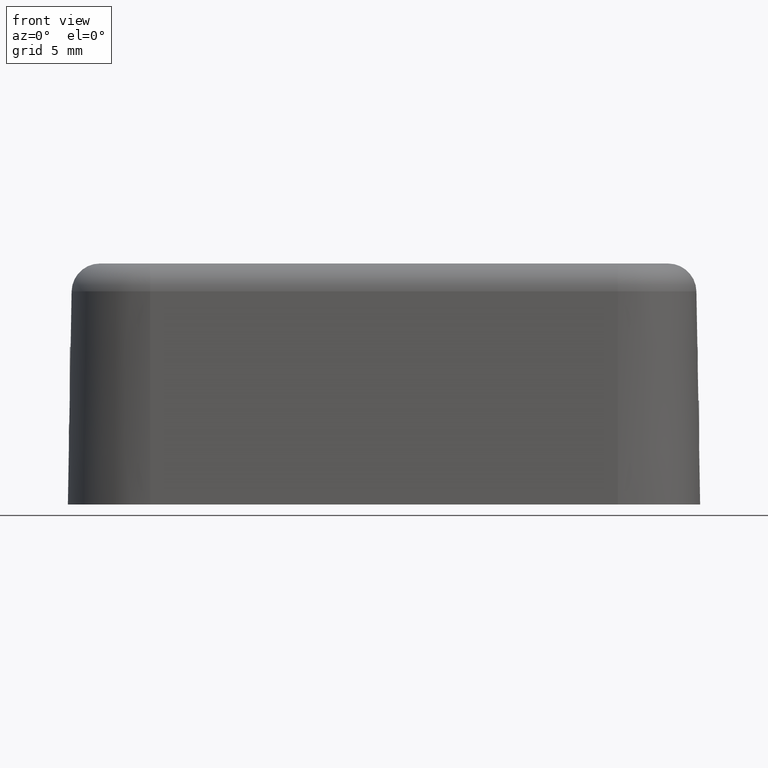
[diagram: clean part render]
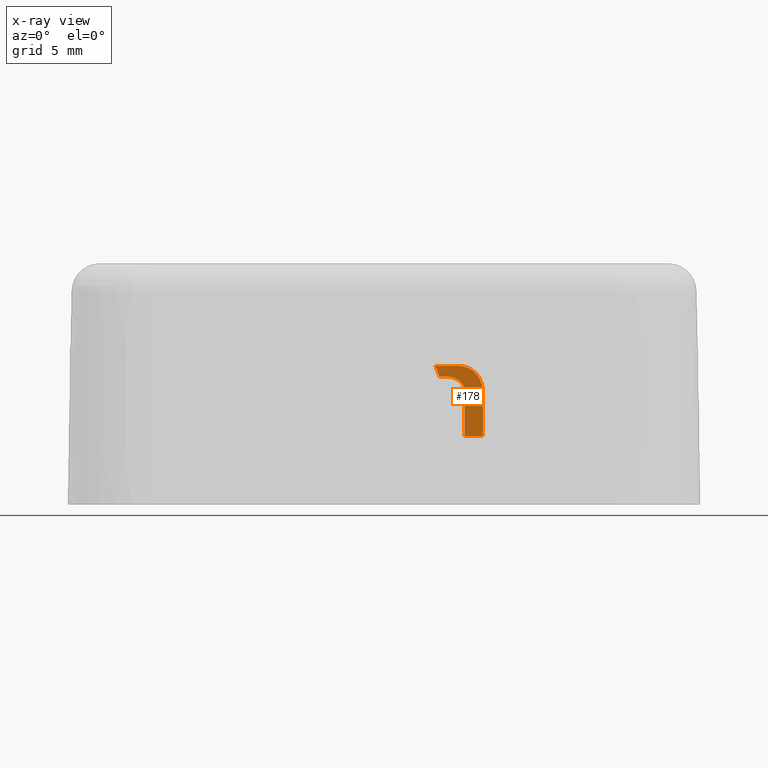
[diagram: x-ray — body ghosted, one internal face saturated and labeled with its STEP entity id]
A machine part, front view, then the same camera in x-ray: the body is ghosted and one INTERNAL B-rep face — a face not visible from any outside direction — is saturated and labeled: STEP entity #178.
In plain terms, the highlighted planar face has unit normal (-0, -0.9998, -0.0175).
Its self-contained STEP definition (entity closure, byte-faithful):
#178=ADVANCED_FACE('',(#403),#404,.T.);
#403=FACE_OUTER_BOUND('',#791,.T.);
#404=PLANE('',#792);
#791=EDGE_LOOP('',(#1386,#1387,#1388,#1389,#1390,#1391,#1392,#1393,#1394,#1395));
#792=AXIS2_PLACEMENT_3D('',#1396,#1397,#1398);
#1386=ORIENTED_EDGE('',*,*,#2932,.T.);
#1387=ORIENTED_EDGE('',*,*,#2930,.T.);
#1388=ORIENTED_EDGE('',*,*,#2938,.T.);
#1389=ORIENTED_EDGE('',*,*,#2939,.T.);
#1390=ORIENTED_EDGE('',*,*,#2940,.T.);
#1391=ORIENTED_EDGE('',*,*,#2941,.T.);
#1392=ORIENTED_EDGE('',*,*,#2942,.T.);
#1393=ORIENTED_EDGE('',*,*,#2943,.T.);
#1394=ORIENTED_EDGE('',*,*,#2924,.T.);
#1395=ORIENTED_EDGE('',*,*,#2927,.T.);
#1396=CARTESIAN_POINT('',(-109.004804760429,-1.86394135748359,330.027120838066));
#1397=DIRECTION('',(-6.12230139754067E-17,-0.999847695156391,-0.0174524064372835));
#1398=DIRECTION('',(1.06865168404189E-18,0.0174524064372835,-0.999847695156391));
#2924=EDGE_CURVE('',#3430,#3428,#3431,.T.);
#2927=EDGE_CURVE('',#3428,#3433,#3435,.T.);
#2930=EDGE_CURVE('',#3437,#3439,#3441,.T.);
#2932=EDGE_CURVE('',#3433,#3437,#3444,.T.);
#2938=EDGE_CURVE('',#3439,#3454,#3455,.T.);
#2939=EDGE_CURVE('',#3454,#3456,#3457,.T.);
#2940=EDGE_CURVE('',#3456,#3458,#3459,.T.);
#2941=EDGE_CURVE('',#3458,#3460,#3461,.T.);
#2942=EDGE_CURVE('',#3460,#3462,#3463,.T.);
#2943=EDGE_CURVE('',#3462,#3430,#3464,.T.);
#3428=VERTEX_POINT('',#4253);
#3430=VERTEX_POINT('',#4256);
#3431=B_SPLINE_CURVE_WITH_KNOTS('',3,(#4257,#4258,#4259,#4260,#4261,#4262),.UNSPECIFIED.,.F.,.F.,(4,2,4),(0.0,0.000489477906700633,0.000978955813401265),.UNSPECIFIED.);
#3433=VERTEX_POINT('',#4265);
#3435=LINE('',#4268,#4269);
#3437=VERTEX_POINT('',#4271);
#3439=VERTEX_POINT('',#4274);
#3441=LINE('',#4277,#4278);
#3444=LINE('',#4291,#4292);
#3454=VERTEX_POINT('',#4325);
#3455=B_SPLINE_CURVE_WITH_KNOTS('',3,(#4326,#4327,#4328,#4329),.UNSPECIFIED.,.F.,.F.,(4,4),(0.0,0.000809639248168947),.UNSPECIFIED.);
#3456=VERTEX_POINT('',#4330);
#3457=B_SPLINE_CURVE_WITH_KNOTS('',3,(#4331,#4332,#4333,#4334,#4335,#4336,#4337,#4338),.UNSPECIFIED.,.F.,.F.,(4,2,2,4),(0.0,0.000519295449088379,0.00103859089817676,0.00207718179635351),.UNSPECIFIED.);
#3458=VERTEX_POINT('',#4339);
#3459=LINE('',#4340,#4341);
#3460=VERTEX_POINT('',#4342);
#3461=LINE('',#4343,#4344);
#3462=VERTEX_POINT('',#4345);
#3463=LINE('',#4346,#4347);
#3464=B_SPLINE_CURVE_WITH_KNOTS('',3,(#4348,#4349,#4350,#4351),.UNSPECIFIED.,.F.,.F.,(4,4),(0.0,0.000984634557303592),.UNSPECIFIED.);
#4253=CARTESIAN_POINT('',(5.68921495000001,3.76022886137258,7.81862479493384));
#4256=CARTESIAN_POINT('',(5.35058849100002,3.74497258939879,8.69265603094093));
#4257=CARTESIAN_POINT('',(5.35058849100002,3.74497258939879,8.69265603094093));
#4258=CARTESIAN_POINT('',(5.47721859227302,3.74680425140634,8.58772018480744));
#4259=CARTESIAN_POINT('',(5.57476928832032,3.74918041793266,8.45158969568717));
#4260=CARTESIAN_POINT('',(5.69240979200355,3.75447757987882,8.14811549103976));
#4261=CARTESIAN_POINT('',(5.71210674899845,3.75738641406496,7.9814684921246));
#4262=CARTESIAN_POINT('',(5.68921495000001,3.76022886137257,7.81862479493384));
#4265=CARTESIAN_POINT('',(5.68921495000001,3.81239226750786,4.83018525891382));
#4268=CARTESIAN_POINT('',(5.68921495000001,3.8129882237903,4.79604294635943));
#4269=VECTOR('',#5772,1000.0);
#4271=CARTESIAN_POINT('',(6.97535969800002,3.81239226750787,4.83018525891353));
#4274=CARTESIAN_POINT('',(6.97535969800002,3.76022886137258,7.81862479493384));
#4277=CARTESIAN_POINT('',(6.97535969800002,3.76084070592381,7.78357224406953));
#4278=VECTOR('',#5775,1000.0);
#4291=CARTESIAN_POINT('',(6.97535969800002,3.81239226750787,4.83018525891353));
#4292=VECTOR('',#5776,1000.0);
#4325=CARTESIAN_POINT('',(6.85251916500003,3.74632834419061,8.61498489093671));
#4326=CARTESIAN_POINT('',(6.97535969800002,3.76022886137258,7.81862479493384));
#4327=CARTESIAN_POINT('',(6.97654290833977,3.75551516924742,8.08867203592358));
#4328=CARTESIAN_POINT('',(6.93502208993655,3.75081678243867,8.35784243592332));
#4329=CARTESIAN_POINT('',(6.85251916500003,3.74632834419061,8.61498489093671));
#4330=CARTESIAN_POINT('',(5.27432954700003,3.72624048161821,9.7658177669529));
#4331=CARTESIAN_POINT('',(6.85251916500003,3.74632834419061,8.61498489093671));
#4332=CARTESIAN_POINT('',(6.79888251443819,3.7434103289387,8.7821578727565));
#4333=CARTESIAN_POINT('',(6.72073759241723,3.74071451528485,8.93660093354949));
#4334=CARTESIAN_POINT('',(6.51596315161756,3.7357624683408,9.22030351296797));
#4335=CARTESIAN_POINT('',(6.39295087138123,3.73360525230902,9.34389033665786));
#4336=CARTESIAN_POINT('',(5.97041558040156,3.72821810310891,9.65251990763165));
#4337=CARTESIAN_POINT('',(5.62551025037205,3.72624048161822,9.7658177669529));
#4338=CARTESIAN_POINT('',(5.27432954700003,3.72624048161821,9.7658177669529));
#4339=CARTESIAN_POINT('',(3.61478793600002,3.72624048161821,9.7658177669529));
#4340=CARTESIAN_POINT('',(3.61478793600002,3.72624048161821,9.7658177669529));
#4341=VECTOR('',#5780,1000.0);
#4342=CARTESIAN_POINT('',(3.90520771849824,3.73927184419445,9.01925150495179));
#4343=CARTESIAN_POINT('',(3.91717522508722,3.73980883556514,8.98848728994114));
#4344=VECTOR('',#5781,1000.0);
#4345=CARTESIAN_POINT('',(4.44455874100001,3.73927184419487,9.01925150493985));
#4346=CARTESIAN_POINT('',(4.44455874100001,3.73927184419487,9.01925150493985));
#4347=VECTOR('',#5782,1000.0);
#4348=CARTESIAN_POINT('',(4.44455874100001,3.73927184419487,9.01925150493985));
#4349=CARTESIAN_POINT('',(4.77406686596694,3.73927184419487,9.01925150493985));
#4350=CARTESIAN_POINT('',(5.09688911509009,3.74130291289607,8.90289165697775));
#4351=CARTESIAN_POINT('',(5.35058849100002,3.74497258939877,8.69265603094093));
#5772=DIRECTION('',(1.73563316110052E-20,0.0174524064372835,-0.999847695156391));
#5775=DIRECTION('',(-1.73563316110052E-20,-0.0174524064372835,0.999847695156391));
#5776=DIRECTION('',(1.0,-6.12323399573677E-17,4.61746810036133E-33));
#5780=DIRECTION('',(-1.0,6.12323399573677E-17,-4.61746810036133E-33));
#5781=DIRECTION('',(0.362494218081534,0.016265398818483,-0.931844074219895));
#5782=DIRECTION('',(1.0,-6.12323399573677E-17,4.61746810036133E-33));